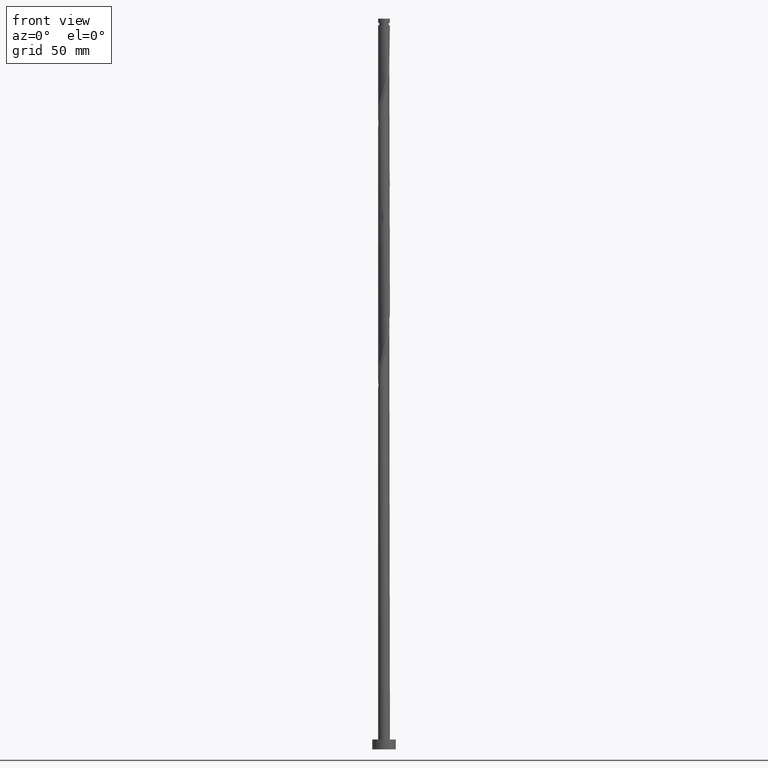
[diagram: clean part render]
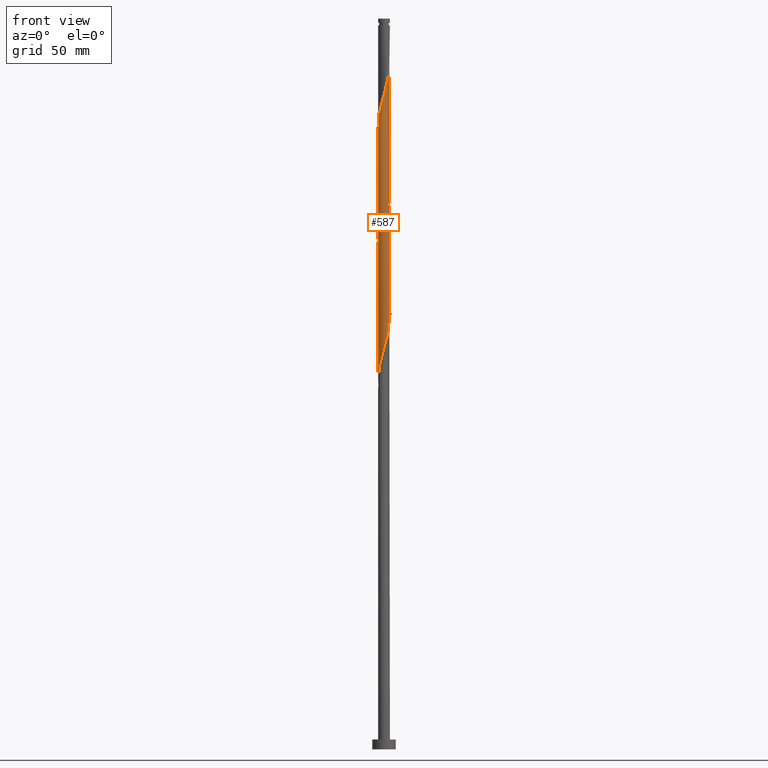
[diagram: same view with one face highlighted and labeled with its STEP entity id]
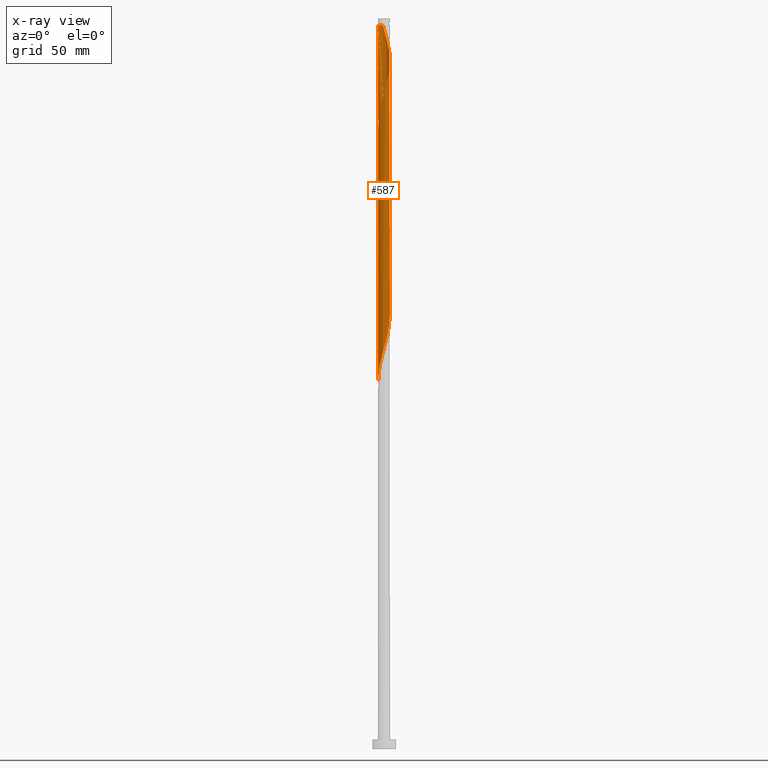
[diagram: x-ray of the same camera — body ghosted, the highlighted face saturated]
A machine part, front view. The second image highlights one B-rep face of the part: STEP entity #587.
The next image is the same camera in x-ray: the body ghosted, the highlighted face saturated — about 0% of this face is hidden behind the body in this view.
In plain terms, the highlighted cylindrical surface (bore or boss wall) has radius 3 mm, axis along (-0, -0, -1).
Its self-contained STEP definition (entity closure, byte-faithful):
#4 = CARTESIAN_POINT ( 'NONE',  ( -1.484415317302708592, -2.626010904050885220, 199.4691783691147862 ) ) ;
#9 = CARTESIAN_POINT ( 'NONE',  ( 3.000000000000000444, 3.673940397442060361E-16, 369.4691783691148430 ) ) ;
#14 = CARTESIAN_POINT ( 'NONE',  ( 1.245111594254571408, -2.729413328510879921, 276.1358450357814718 ) ) ;
#22 = CARTESIAN_POINT ( 'NONE',  ( -1.484415317302708592, -2.626010904050885220, 266.1358450357814718 ) ) ;
#52 = CARTESIAN_POINT ( 'NONE',  ( 0.000000000000000000, 0.000000000000000000, 369.4691783691147293 ) ) ;
#59 = CARTESIAN_POINT ( 'NONE',  ( -2.584311715169900658, -1.523592123514561303, 193.9136228135592148 ) ) ;
#65 = EDGE_CURVE ( 'NONE', #106, #1760, #941, .T. ) ;
#96 = ORIENTED_EDGE ( 'NONE', *, *, #890, .F. ) ;
#97 = CARTESIAN_POINT ( 'NONE',  ( 2.766788993523057627, -1.201790650553047346, 217.2469561468925292 ) ) ;
#104 = DIRECTION ( 'NONE',  ( -0.000000000000000000, -0.000000000000000000, -1.000000000000000000 ) ) ;
#106 = VERTEX_POINT ( 'NONE', #1238 ) ;
#107 = CARTESIAN_POINT ( 'NONE',  ( -2.456461689585820451, 1.750776419202127565, 248.3580672580037003 ) ) ;
#115 = CARTESIAN_POINT ( 'NONE',  ( -2.038775222402705367, 2.223244857174722089, 246.1358450357814149 ) ) ;
#123 = CARTESIAN_POINT ( 'NONE',  ( -0.02731362638454121541, -2.999875658392153532, 333.9136228135591864 ) ) ;
#125 = CARTESIAN_POINT ( 'NONE',  ( -0.9582386936374909236, 2.860279830445433547, 241.6914005913369863 ) ) ;
#130 = CARTESIAN_POINT ( 'NONE',  ( 2.980586974261063560, 0.3407363920471039309, 289.4691783691147862 ) ) ;
#132 = CARTESIAN_POINT ( 'NONE',  ( 1.195207115623885930, -2.751632233922633120, 338.3580672580037003 ) ) ;
#135 = CARTESIAN_POINT ( 'NONE',  ( -2.584311715169900658, -1.523592123514561303, 260.5802894802258720 ) ) ;
#145 = CARTESIAN_POINT ( 'NONE',  ( 1.785379858637178296, -2.410895841875524415, 278.3580672580036435 ) ) ;
#146 = CARTESIAN_POINT ( 'NONE',  ( -0.9059989139450637108, -2.877253563794371249, 201.6914005913369579 ) ) ;
#159 = CARTESIAN_POINT ( 'NONE',  ( 2.456461689585819563, -1.750776419202128675, 281.6914005913370147 ) ) ;
#177 = CARTESIAN_POINT ( 'NONE',  ( -0.9059989139450637108, -2.877253563794371249, 268.3580672580036435 ) ) ;
#187 = CARTESIAN_POINT ( 'NONE',  ( -2.980586974261063560, -0.3407363920471042085, 189.4691783691147862 ) ) ;
#196 = CARTESIAN_POINT ( 'NONE',  ( -2.424175730171094223, -1.795214230025623303, 195.0247339246703291 ) ) ;
#204 = CARTESIAN_POINT ( 'NONE',  ( -2.861491667719897602, 0.9010357570982414632, 251.6914005913369863 ) ) ;
#223 = CARTESIAN_POINT ( 'NONE',  ( -2.611625341554443924, -1.476283534877588011, 322.8025117024481006 ) ) ;
#232 = CARTESIAN_POINT ( 'NONE',  ( -3.000000000000000444, 1.644325696273145006E-15, 321.5946216126362174 ) ) ;
#236 = CARTESIAN_POINT ( 'NONE',  ( -0.6504259784947271639, 2.928642355512051765, 240.5802894802258436 ) ) ;
#241 = CARTESIAN_POINT ( 'NONE',  ( -2.861491667719897602, 0.9010357570982414632, 318.3580672580037003 ) ) ;
#248 = CARTESIAN_POINT ( 'NONE',  ( -0.02731362638453929334, 2.999875658392148647, 238.3580672580036435 ) ) ;
#252 = CARTESIAN_POINT ( 'NONE',  ( -2.456461689585820451, 1.750776419202127565, 315.0247339246703859 ) ) ;
#261 = CARTESIAN_POINT ( 'NONE',  ( -0.02731362638453929334, 2.999875658392148647, 305.0247339246703291 ) ) ;
#263 = CARTESIAN_POINT ( 'NONE',  ( 2.944774136347771520, -0.6540087066196541565, 348.3580672580035298 ) ) ;
#271 = CARTESIAN_POINT ( 'NONE',  ( -0.5969924622640608858, 2.940000000000874802, 369.4691783691148430 ) ) ;
#273 = CARTESIAN_POINT ( 'NONE',  ( 2.944774136347768412, 0.6540087066196489385, 223.9136228135592432 ) ) ;
#279 = CARTESIAN_POINT ( 'NONE',  ( -0.2879860105829035732, 3.002746436205633529, 368.3580672580036435 ) ) ;
#289 = CARTESIAN_POINT ( 'NONE',  ( 0.9582386936374943653, 2.860279830445438431, 363.9136228135592432 ) ) ;
#291 = CARTESIAN_POINT ( 'NONE',  ( 1.245111594254571408, -2.729413328510879921, 209.4691783691147862 ) ) ;
#296 = LINE ( 'NONE', #1194, #673 ) ;
#310 = CARTESIAN_POINT ( 'NONE',  ( 0.6504259784947263867, -2.928642355512053097, 273.9136228135592432 ) ) ;
#313 = DIRECTION ( 'NONE',  ( -1.000000000000000000, 0.000000000000000000, 0.000000000000000000 ) ) ;
#318 = CARTESIAN_POINT ( 'NONE',  ( 2.956194341916737578, -0.6002808636434362466, 286.1358450357813581 ) ) ;
#328 = CARTESIAN_POINT ( 'NONE',  ( -2.424175730171094223, -1.795214230025623303, 261.6914005913370147 ) ) ;
#345 = CARTESIAN_POINT ( 'NONE',  ( -2.986297077045549919, 0.2864083930844388282, 253.9136228135592148 ) ) ;
#380 = CARTESIAN_POINT ( 'NONE',  ( 0.9059989139450652651, 2.877253563794371249, 235.0247339246703291 ) ) ;
#385 = CARTESIAN_POINT ( 'NONE',  ( -3.000000000000000444, 3.916484840214219130E-15, 188.2612882793029314 ) ) ;
#388 = CARTESIAN_POINT ( 'NONE',  ( 2.844610918258236865, 0.9529893618115734544, 291.6914005913369010 ) ) ;
#392 = CARTESIAN_POINT ( 'NONE',  ( -2.611625341554439039, 1.476283534877586234, 249.4691783691147577 ) ) ;
#398 = CARTESIAN_POINT ( 'NONE',  ( 0.3426132633519657911, 2.997004880578674868, 366.1358450357813581 ) ) ;
#408 = CARTESIAN_POINT ( 'NONE',  ( 2.038775222402709364, 2.223244857174723865, 359.4691783691147293 ) ) ;
#413 = CARTESIAN_POINT ( 'NONE',  ( 2.611625341554439039, -1.476283534877586456, 216.1358450357813865 ) ) ;
#419 = CARTESIAN_POINT ( 'NONE',  ( 1.484415317302710147, -2.626010904050889216, 339.4691783691147862 ) ) ;
#428 = CARTESIAN_POINT ( 'NONE',  ( 2.956194341916742463, 0.6002808636434358025, 352.8025117024482142 ) ) ;
#437 = CARTESIAN_POINT ( 'NONE',  ( -1.785379858637182737, -2.410895841875527079, 327.2469561468926145 ) ) ;
#439 = CARTESIAN_POINT ( 'NONE',  ( -0.2879860105828862538, -3.002746436205629088, 203.9136228135592717 ) ) ;
#444 = CARTESIAN_POINT ( 'NONE',  ( 3.000000000000000444, 3.673940397442060361E-16, 372.8000000000000114 ) ) ;
#457 = CARTESIAN_POINT ( 'NONE',  ( 3.000000000000001776, -0.1435319978602356272, 287.7527397537389788 ) ) ;
#466 = CARTESIAN_POINT ( 'NONE',  ( 1.531984494871651670, -2.598546826576326296, 277.2469561468926713 ) ) ;
#474 = CARTESIAN_POINT ( 'NONE',  ( 3.000000000000000444, 3.273702977125625728E-15, 288.2612882793030167 ) ) ;
#488 = DIRECTION ( 'NONE',  ( -0.000000000000000000, -0.000000000000000000, -1.000000000000000000 ) ) ;
#503 = CARTESIAN_POINT ( 'NONE',  ( -2.861491667719902932, -0.9010357570982416853, 320.5802894802258720 ) ) ;
#504 = CARTESIAN_POINT ( 'NONE',  ( -2.766788993523057627, 1.201790650553046680, 250.5802894802259289 ) ) ;
#513 = CARTESIAN_POINT ( 'NONE',  ( -2.986297077045553916, -0.2864083930844377734, 318.3580672580035866 ) ) ;
#514 = CARTESIAN_POINT ( 'NONE',  ( -2.844610918258235976, -0.9529893618115752307, 191.6914005913369579 ) ) ;
#523 = CARTESIAN_POINT ( 'NONE',  ( 1.195207115623886818, 2.751632233922627790, 300.5802894802258720 ) ) ;
#527 = CARTESIAN_POINT ( 'NONE',  ( 2.861491667719896714, -0.9010357570982429065, 218.3580672580036435 ) ) ;
#535 = CARTESIAN_POINT ( 'NONE',  ( 2.424175730171094223, 1.795214230025621305, 295.0247339246702722 ) ) ;
#540 = CARTESIAN_POINT ( 'NONE',  ( 2.844610918258236865, 0.9529893618115734544, 225.0247339246703575 ) ) ;
#545 = CARTESIAN_POINT ( 'NONE',  ( -3.000000000000000888, 0.1435319978602457025, 321.0860730870722364 ) ) ;
#547 = CARTESIAN_POINT ( 'NONE',  ( -1.531984494871655444, -2.598546826576329405, 328.3580672580036435 ) ) ;
#558 = CARTESIAN_POINT ( 'NONE',  ( 0.5969924622639741774, -2.940000000000004388, 336.1358450357814718 ) ) ;
#567 = CARTESIAN_POINT ( 'NONE',  ( -2.456461689585825781, -1.750776419202128675, 323.9136228135591864 ) ) ;
#574 = CARTESIAN_POINT ( 'NONE',  ( 1.531984494871656777, 2.598546826576328517, 361.6914005913368442 ) ) ;
#585 = CARTESIAN_POINT ( 'NONE',  ( -2.844610918258235976, -0.9529893618115752307, 258.3580672580036435 ) ) ;
#587 = ADVANCED_FACE ( 'NONE', ( #1138 ), #1711, .T. ) ;
#622 = CARTESIAN_POINT ( 'NONE',  ( 2.611625341554439039, -1.476283534877586456, 282.8025117024480437 ) ) ;
#629 = VERTEX_POINT ( 'NONE', #1275 ) ;
#630 = CARTESIAN_POINT ( 'NONE',  ( -1.997955648279247542, -2.259998966801997966, 197.2469561468925860 ) ) ;
#640 = CARTESIAN_POINT ( 'NONE',  ( -3.000000000000000000, -0.1709212123392955807, 188.8668795886874534 ) ) ;
#644 = EDGE_CURVE ( 'NONE', #762, #106, #1779, .T. ) ;
#664 =( BOUNDED_CURVE ( )  B_SPLINE_CURVE ( 2, ( #836, #1246, #513, #797, #503, #1536, #223, #567, #1140, #1722, #437, #547, #1298, #1129, #1598, #1450, #123, #1149, #558, #1847, #132, #419, #720, #689, #728, #1590, #1306, #1877, #1740, #263, #859, #699, #852, #428, #1004, #1581, #1704, #1886, #1023, #408, #1729, #574, #1314, #289, #868, #398, #1442, #279, #271 ),
 .UNSPECIFIED., .F., .T. ) 
 B_SPLINE_CURVE_WITH_KNOTS ( ( 3, 2, 2, 2, 2, 2, 2, 2, 2, 2, 2, 2, 2, 2, 2, 2, 2, 2, 2, 2, 2, 2, 2, 2, 3 ),
 ( 0.5545286012773118500, 0.5583333333333333481, 0.5666666666666666519, 0.5750000000000000666, 0.5833333333333333703, 0.5916666666666667851, 0.6000000000000000888, 0.6083333333333335036, 0.6166666666666669183, 0.6250000000000002220, 0.6333333333333335258, 0.6416666666666668295, 0.6500000000000002442, 0.6583333333333336590, 0.6666666666666670737, 0.6750000000000003775, 0.6833333333333336812, 0.6916666666666670960, 0.7000000000000003997, 0.7083333333333337034, 0.7166666666666671182, 0.7250000000000004219, 0.7333333333333339477, 0.7416666666666672514, 0.7500000000000005551 ),
 .UNSPECIFIED. ) 
 CURVE ( )  GEOMETRIC_REPRESENTATION_ITEM ( )  RATIONAL_B_SPLINE_CURVE ( ( 0.9066196499552489074, 0.9068171577856618537, 0.9090909090909605750, 0.9041108139712088487, 0.9090909090909605750, 0.9041108139712088487, 0.9090909090909605750, 0.9041108139712088487, 0.9090909090909605750, 0.9041108139712088487, 0.9090909090909605750, 0.9041108139712088487, 0.9090909090909605750, 0.9041108139712088487, 0.9090909090909605750, 0.9041108139712088487, 0.9090909090909605750, 0.9041108139712088487, 0.9090909090909605750, 0.9041108139712088487, 0.9090909090909605750, 0.9041108139712088487, 0.9090909090909605750, 0.9041108139712088487, 0.9090909090909605750, 0.9041108139712088487, 0.9090909090909605750, 0.9041108139712088487, 0.9090909090909605750, 0.9041108139712088487, 0.9090909090909605750, 0.9041108139712088487, 0.9090909090909605750, 0.9041108139712088487, 0.9090909090909605750, 0.9041108139712088487, 0.9090909090909605750, 0.9041108139712088487, 0.9090909090909605750, 0.9041108139712088487, 0.9090909090909605750, 0.9041108139712088487, 0.9090909090909605750, 0.9041108139712088487, 0.9090909090909605750, 0.9041108139712088487, 0.9090909090909605750, 0.9041108139712085157, 0.9090909090909609080 ) ) 
 REPRESENTATION_ITEM ( '' )  );
#673 = VECTOR ( 'NONE', #1312, 1000.000000000000000 ) ;
#678 = CARTESIAN_POINT ( 'NONE',  ( -0.6504259784947271639, 2.928642355512051765, 307.2469561468925576 ) ) ;
#682 = CARTESIAN_POINT ( 'NONE',  ( 1.997955648279248209, 2.259998966801997522, 230.5802894802258720 ) ) ;
#687 = CARTESIAN_POINT ( 'NONE',  ( -2.611625341554439039, 1.476283534877586234, 316.1358450357814718 ) ) ;
#689 = CARTESIAN_POINT ( 'NONE',  ( 1.997955648279249319, -2.259998966802002851, 341.6914005913370147 ) ) ;
#692 = VERTEX_POINT ( 'NONE', #9 ) ;
#697 = CARTESIAN_POINT ( 'NONE',  ( -0.9582386936374909236, 2.860279830445433547, 308.3580672580036435 ) ) ;
#699 = CARTESIAN_POINT ( 'NONE',  ( 3.016399812174366257, -0.02746407747456081072, 350.5802894802258152 ) ) ;
#703 = CARTESIAN_POINT ( 'NONE',  ( -1.531984494871652336, 2.598546826576327184, 243.9136228135591580 ) ) ;
#708 = CARTESIAN_POINT ( 'NONE',  ( -2.956194341916737578, 0.6002808636434358025, 319.4691783691148430 ) ) ;
#714 = CARTESIAN_POINT ( 'NONE',  ( -1.245111594254571408, 2.729413328510879921, 242.8025117024481006 ) ) ;
#720 = CARTESIAN_POINT ( 'NONE',  ( 1.741185482790978956, -2.443004935426446700, 340.5802894802257583 ) ) ;
#726 = CARTESIAN_POINT ( 'NONE',  ( -0.5969924622640608858, 2.940000000000874802, 369.4691783691148430 ) ) ;
#728 = CARTESIAN_POINT ( 'NONE',  ( 2.211065689225172992, -2.027606598413814520, 342.8025117024481006 ) ) ;
#740 = CARTESIAN_POINT ( 'NONE',  ( -1.741185482790978289, -2.443004935426440483, 265.0247339246702722 ) ) ;
#752 = CARTESIAN_POINT ( 'NONE',  ( 2.247618455994261577, -1.987010638188425382, 213.9136228135591864 ) ) ;
#757 = EDGE_CURVE ( 'NONE', #788, #1760, #296, .T. ) ;
#762 = VERTEX_POINT ( 'NONE', #1462 ) ;
#770 = VERTEX_POINT ( 'NONE', #726 ) ;
#788 = VERTEX_POINT ( 'NONE', #1341 ) ;
#797 = CARTESIAN_POINT ( 'NONE',  ( -2.956194341916742463, -0.6002808636434362466, 319.4691783691147293 ) ) ;
#824 = CARTESIAN_POINT ( 'NONE',  ( 0.9059989139450652651, 2.877253563794371249, 301.6914005913370147 ) ) ;
#834 = DIRECTION ( 'NONE',  ( -1.000000000000000000, 0.000000000000000000, 0.000000000000000000 ) ) ;
#836 = CARTESIAN_POINT ( 'NONE',  ( -3.000000000000006217, -2.541230621513023448E-16, 317.3437351255933550 ) ) ;
#838 = CARTESIAN_POINT ( 'NONE',  ( 1.741185482790979622, 2.443004935426439594, 231.6914005913369579 ) ) ;
#842 = CARTESIAN_POINT ( 'NONE',  ( -1.785379858637178296, 2.410895841875523526, 311.6914005913370147 ) ) ;
#846 = ORIENTED_EDGE ( 'NONE', *, *, #1088, .T. ) ;
#850 = CARTESIAN_POINT ( 'NONE',  ( 0.2879860105828850325, 3.002746436205628644, 303.9136228135591864 ) ) ;
#852 = CARTESIAN_POINT ( 'NONE',  ( 2.986297077045553916, 0.2864083930844361081, 351.6914005913369579 ) ) ;
#857 = CARTESIAN_POINT ( 'NONE',  ( 2.999999999999997335, 0.1709212123393112348, 288.8668795886875387 ) ) ;
#859 = CARTESIAN_POINT ( 'NONE',  ( 2.980586974261068889, -0.3407363920471059848, 349.4691783691146725 ) ) ;
#868 = CARTESIAN_POINT ( 'NONE',  ( 0.6504259784947314937, 2.928642355512055762, 365.0247339246703291 ) ) ;
#879 = CARTESIAN_POINT ( 'NONE',  ( -0.5969924622639740663, -2.939999999999999503, 202.8025117024480721 ) ) ;
#889 = CARTESIAN_POINT ( 'NONE',  ( -1.741185482790978289, -2.443004935426440483, 198.3580672580036435 ) ) ;
#890 = EDGE_CURVE ( 'NONE', #692, #106, #1040, .T. ) ;
#898 = ORIENTED_EDGE ( 'NONE', *, *, #757, .T. ) ;
#899 = CARTESIAN_POINT ( 'NONE',  ( -0.2879860105828862538, -3.002746436205629088, 270.5802894802258720 ) ) ;
#934 = CARTESIAN_POINT ( 'NONE',  ( -2.956194341916737578, 0.6002808636434358025, 252.8025117024480437 ) ) ;
#941 =( BOUNDED_CURVE ( )  B_SPLINE_CURVE ( 2, ( #474, #457, #1751, #318, #1600, #1617, #622, #159, #1337, #1468, #145, #466, #14, #1046, #310, #1780, #1493, #899, #1317, #177, #1345, #22, #740, #1356, #1633, #328, #135, #1889, #585, #1170, #1326, #1226, #345, #934, #204, #504, #392, #107, #1133, #115, #1143, #703, #714, #125, #236, #1152, #248, #1707, #1415, #380, #988, #1697, #838, #682, #1270, #1006, #1840, #1290, #540, #273, #1862, #1715, #1565, #1427, #527, #97, #413, #998, #752, #1731, #1016, #1459, #291, #1171, #1742, #1338, #1190, #439, #879, #146, #1327, #4, #889, #630, #1062, #196, #59, #1393, #514, #1247, #187, #640, #1789 ),
 .UNSPECIFIED., .F., .T. ) 
 B_SPLINE_CURVE_WITH_KNOTS ( ( 3, 2, 2, 2, 2, 2, 2, 2, 2, 2, 2, 2, 2, 2, 2, 2, 2, 2, 2, 2, 2, 2, 2, 2, 2, 2, 2, 2, 2, 2, 2, 2, 2, 2, 2, 2, 2, 2, 2, 2, 2, 2, 2, 2, 2, 2, 3 ),
 ( 0.5545286012773110729, 0.5583333333333333481, 0.5666666666666666519, 0.5749999999999999556, 0.5833333333333333703, 0.5916666666666666741, 0.5999999999999999778, 0.6083333333333332815, 0.6166666666666666963, 0.6250000000000000000, 0.6333333333333333037, 0.6416666666666667185, 0.6500000000000000222, 0.6583333333333333259, 0.6666666666666666297, 0.6750000000000000444, 0.6833333333333333481, 0.6916666666666666519, 0.6999999999999999556, 0.7083333333333333703, 0.7166666666666666741, 0.7249999999999999778, 0.7333333333333332815, 0.7416666666666666963, 0.7500000000000000000, 0.7583333333333333037, 0.7666666666666667185, 0.7750000000000000222, 0.7833333333333333259, 0.7916666666666666297, 0.8000000000000000444, 0.8083333333333333481, 0.8166666666666666519, 0.8249999999999999556, 0.8333333333333333703, 0.8416666666666666741, 0.8499999999999999778, 0.8583333333333332815, 0.8666666666666666963, 0.8750000000000000000, 0.8833333333333333037, 0.8916666666666666075, 0.9000000000000001332, 0.9083333333333333259, 0.9166666666666666297, 0.9250000000000000444, 0.9295286012773115170 ),
 .UNSPECIFIED. ) 
 CURVE ( )  GEOMETRIC_REPRESENTATION_ITEM ( )  RATIONAL_B_SPLINE_CURVE ( ( 0.9066196499552421351, 0.9068171577856545262, 0.9090909090909538026, 0.9041108139712019653, 0.9090909090909538026, 0.9041108139712019653, 0.9090909090909538026, 0.9041108139712019653, 0.9090909090909538026, 0.9041108139712019653, 0.9090909090909538026, 0.9041108139712019653, 0.9090909090909538026, 0.9041108139712019653, 0.9090909090909538026, 0.9041108139712019653, 0.9090909090909538026, 0.9041108139712019653, 0.9090909090909538026, 0.9041108139712019653, 0.9090909090909538026, 0.9041108139712019653, 0.9090909090909538026, 0.9041108139712019653, 0.9090909090909538026, 0.9041108139712019653, 0.9090909090909538026, 0.9041108139712019653, 0.9090909090909538026, 0.9041108139712019653, 0.9090909090909538026, 0.9041108139712019653, 0.9090909090909538026, 0.9041108139712019653, 0.9090909090909538026, 0.9041108139712019653, 0.9090909090909538026, 0.9041108139712019653, 0.9090909090909538026, 0.9041108139712019653, 0.9090909090909538026, 0.9041108139712019653, 0.9090909090909538026, 0.9041108139712019653, 0.9090909090909538026, 0.9041108139712019653, 0.9090909090909538026, 0.9041108139712019653, 0.9090909090909538026, 0.9041108139712019653, 0.9090909090909538026, 0.9041108139712019653, 0.9090909090909538026, 0.9041108139712019653, 0.9090909090909538026, 0.9041108139712019653, 0.9090909090909538026, 0.9041108139712019653, 0.9090909090909538026, 0.9041108139712019653, 0.9090909090909538026, 0.9041108139712019653, 0.9090909090909538026, 0.9041108139712019653, 0.9090909090909538026, 0.9041108139712019653, 0.9090909090909538026, 0.9041108139712019653, 0.9090909090909538026, 0.9041108139712019653, 0.9090909090909538026, 0.9041108139712019653, 0.9090909090909538026, 0.9041108139712019653, 0.9090909090909538026, 0.9041108139712019653, 0.9090909090909538026, 0.9041108139712019653, 0.9090909090909538026, 0.9041108139712019653, 0.9090909090909538026, 0.9041108139712019653, 0.9090909090909538026, 0.9041108139712019653, 0.9090909090909538026, 0.9041108139712019653, 0.9090909090909538026, 0.9041108139712019653, 0.9090909090909538026, 0.9041108139712019653, 0.9090909090909538026, 0.9063845652765009087, 0.9066196499552421351 ) ) 
 REPRESENTATION_ITEM ( '' )  );
#945 = AXIS2_PLACEMENT_3D ( 'NONE', #1544, #1824, #834 ) ;
#976 = ORIENTED_EDGE ( 'NONE', *, *, #1233, .F. ) ;
#988 = CARTESIAN_POINT ( 'NONE',  ( 1.195207115623886818, 2.751632233922627790, 233.9136228135592148 ) ) ;
#994 = LINE ( 'NONE', #1433, #1382 ) ;
#998 = CARTESIAN_POINT ( 'NONE',  ( 2.456461689585819563, -1.750776419202128675, 215.0247339246703007 ) ) ;
#1002 = CARTESIAN_POINT ( 'NONE',  ( -2.986297077045549919, 0.2864083930844388282, 320.5802894802259289 ) ) ;
#1004 = CARTESIAN_POINT ( 'NONE',  ( 2.861491667719903376, 0.9010357570982405750, 353.9136228135593001 ) ) ;
#1006 = CARTESIAN_POINT ( 'NONE',  ( 2.424175730171094223, 1.795214230025621305, 228.3580672580036719 ) ) ;
#1016 = CARTESIAN_POINT ( 'NONE',  ( 1.785379858637178296, -2.410895841875524415, 211.6914005913369579 ) ) ;
#1023 = CARTESIAN_POINT ( 'NONE',  ( 2.247618455994268238, 1.987010638188425604, 358.3580672580036435 ) ) ;
#1040 = LINE ( 'NONE', #444, #1164 ) ;
#1046 = CARTESIAN_POINT ( 'NONE',  ( 0.9582386936374903685, -2.860279830445433991, 275.0247339246703291 ) ) ;
#1062 = CARTESIAN_POINT ( 'NONE',  ( -2.211065689225170328, -2.027606598413810524, 196.1358450357814434 ) ) ;
#1088 = EDGE_CURVE ( 'NONE', #629, #770, #1292, .T. ) ;
#1109 = CARTESIAN_POINT ( 'NONE',  ( 1.741185482790979622, 2.443004935426439594, 298.3580672580037572 ) ) ;
#1119 = CARTESIAN_POINT ( 'NONE',  ( 2.584311715169900658, 1.523592123514560859, 293.9136228135591864 ) ) ;
#1127 = CARTESIAN_POINT ( 'NONE',  ( -2.038775222402705367, 2.223244857174722089, 312.8025117024481574 ) ) ;
#1129 = CARTESIAN_POINT ( 'NONE',  ( -0.9582386936374938102, -2.860279830445438431, 330.5802894802258152 ) ) ;
#1131 = EDGE_LOOP ( 'NONE', ( #1871, #846, #976, #898, #1706, #96, #1355, #1288 ) ) ;
#1133 = CARTESIAN_POINT ( 'NONE',  ( -2.247618455994262465, 1.987010638188424494, 247.2469561468925008 ) ) ;
#1138 = FACE_OUTER_BOUND ( 'NONE', #1131, .T. ) ;
#1140 = CARTESIAN_POINT ( 'NONE',  ( -2.247618455994266906, -1.987010638188426492, 325.0247339246702154 ) ) ;
#1143 = CARTESIAN_POINT ( 'NONE',  ( -1.785379858637178296, 2.410895841875523526, 245.0247339246703007 ) ) ;
#1149 = CARTESIAN_POINT ( 'NONE',  ( 0.2879860105828841443, -3.002746436205632641, 335.0247339246703291 ) ) ;
#1152 = CARTESIAN_POINT ( 'NONE',  ( -0.3426132633519639037, 2.997004880578669095, 239.4691783691147293 ) ) ;
#1164 = VECTOR ( 'NONE', #1727, 1000.000000000000000 ) ;
#1170 = CARTESIAN_POINT ( 'NONE',  ( -2.944774136347768412, -0.6540087066196496046, 257.2469561468925008 ) ) ;
#1171 = CARTESIAN_POINT ( 'NONE',  ( 0.9582386936374903685, -2.860279830445433991, 208.3580672580035866 ) ) ;
#1190 = CARTESIAN_POINT ( 'NONE',  ( 0.02731362638453854741, -2.999875658392148203, 205.0247339246703291 ) ) ;
#1194 = CARTESIAN_POINT ( 'NONE',  ( -3.000000000000000444, 0.000000000000000000, 372.8000000000000114 ) ) ;
#1226 = CARTESIAN_POINT ( 'NONE',  ( -3.016399812174360484, -0.02746407747455825027, 255.0247339246703575 ) ) ;
#1233 = EDGE_CURVE ( 'NONE', #788, #770, #664, .T. ) ;
#1238 = CARTESIAN_POINT ( 'NONE',  ( 3.000000000000000444, 3.273702977125625728E-15, 288.2612882793030167 ) ) ;
#1246 = CARTESIAN_POINT ( 'NONE',  ( -3.000000000000003997, -0.1435319978602622171, 317.8522836511573928 ) ) ;
#1247 = CARTESIAN_POINT ( 'NONE',  ( -2.944774136347768412, -0.6540087066196496046, 190.5802894802259004 ) ) ;
#1266 = CARTESIAN_POINT ( 'NONE',  ( 2.211065689225170772, 2.027606598413810524, 296.1358450357814149 ) ) ;
#1270 = CARTESIAN_POINT ( 'NONE',  ( 2.211065689225170772, 2.027606598413810524, 229.4691783691147862 ) ) ;
#1275 = CARTESIAN_POINT ( 'NONE',  ( -2.999999999999967581, 0.000000000000000000, 369.4691783691147293 ) ) ;
#1288 = ORIENTED_EDGE ( 'NONE', *, *, #644, .F. ) ;
#1290 = CARTESIAN_POINT ( 'NONE',  ( 2.744447700168706650, 1.251970017003501301, 226.1358450357814434 ) ) ;
#1292 = CIRCLE ( 'NONE', #1797, 2.999999999999967581 ) ;
#1295 = CARTESIAN_POINT ( 'NONE',  ( 0.5969924622639745104, 2.939999999999999503, 302.8025117024481006 ) ) ;
#1298 = CARTESIAN_POINT ( 'NONE',  ( -1.245111594254574738, -2.729413328510884362, 329.4691783691147862 ) ) ;
#1304 = CARTESIAN_POINT ( 'NONE',  ( 3.000000000000000444, 3.273702977125625728E-15, 288.2612882793030167 ) ) ;
#1306 = CARTESIAN_POINT ( 'NONE',  ( 2.584311715169902879, -1.523592123514565966, 345.0247339246703291 ) ) ;
#1312 = DIRECTION ( 'NONE',  ( -0.000000000000000000, -0.000000000000000000, -1.000000000000000000 ) ) ;
#1314 = CARTESIAN_POINT ( 'NONE',  ( 1.245111594254574738, 2.729413328510884362, 362.8025117024481574 ) ) ;
#1317 = CARTESIAN_POINT ( 'NONE',  ( -0.5969924622639740663, -2.939999999999999503, 269.4691783691147862 ) ) ;
#1326 = CARTESIAN_POINT ( 'NONE',  ( -2.980586974261063560, -0.3407363920471042085, 256.1358450357814149 ) ) ;
#1327 = CARTESIAN_POINT ( 'NONE',  ( -1.195207115623886596, -2.751632233922628235, 200.5802894802259004 ) ) ;
#1337 = CARTESIAN_POINT ( 'NONE',  ( 2.247618455994261577, -1.987010638188425382, 280.5802894802258152 ) ) ;
#1338 = CARTESIAN_POINT ( 'NONE',  ( 0.3426132633519635151, -2.997004880578669983, 206.1358450357814718 ) ) ;
#1341 = CARTESIAN_POINT ( 'NONE',  ( -3.000000000000005773, -2.541230621513023448E-16, 317.3437351255933550 ) ) ;
#1345 = CARTESIAN_POINT ( 'NONE',  ( -1.195207115623886596, -2.751632233922628235, 267.2469561468925008 ) ) ;
#1353 = EDGE_CURVE ( 'NONE', #629, #762, #994, .T. ) ;
#1355 = ORIENTED_EDGE ( 'NONE', *, *, #890, .T. ) ;
#1356 = CARTESIAN_POINT ( 'NONE',  ( -1.997955648279247542, -2.259998966801997966, 263.9136228135592432 ) ) ;
#1382 = VECTOR ( 'NONE', #104, 1000.000000000000000 ) ;
#1393 = CARTESIAN_POINT ( 'NONE',  ( -2.744447700168706206, -1.251970017003501301, 192.8025117024481290 ) ) ;
#1400 = CARTESIAN_POINT ( 'NONE',  ( 1.484415317302709036, 2.626010904050884331, 299.4691783691146725 ) ) ;
#1415 = CARTESIAN_POINT ( 'NONE',  ( 0.5969924622639745104, 2.939999999999999503, 236.1358450357813581 ) ) ;
#1427 = CARTESIAN_POINT ( 'NONE',  ( 2.956194341916737578, -0.6002808636434362466, 219.4691783691147862 ) ) ;
#1431 = CARTESIAN_POINT ( 'NONE',  ( -1.531984494871652336, 2.598546826576327184, 310.5802894802259289 ) ) ;
#1433 = CARTESIAN_POINT ( 'NONE',  ( -3.000000000000000444, 0.000000000000000000, 372.8000000000000114 ) ) ;
#1442 = CARTESIAN_POINT ( 'NONE',  ( 0.02731362638454164216, 2.999875658392154421, 367.2469561468925576 ) ) ;
#1450 = CARTESIAN_POINT ( 'NONE',  ( -0.3426132633519652360, -2.997004880578674424, 332.8025117024480437 ) ) ;
#1454 = CARTESIAN_POINT ( 'NONE',  ( 2.944774136347768412, 0.6540087066196489385, 290.5802894802259857 ) ) ;
#1459 = CARTESIAN_POINT ( 'NONE',  ( 1.531984494871651670, -2.598546826576326296, 210.5802894802258720 ) ) ;
#1462 = CARTESIAN_POINT ( 'NONE',  ( -3.000000000000000444, 1.644325696273145006E-15, 321.5946216126362174 ) ) ;
#1468 = CARTESIAN_POINT ( 'NONE',  ( 2.038775222402704479, -2.223244857174722089, 279.4691783691147293 ) ) ;
#1493 = CARTESIAN_POINT ( 'NONE',  ( 0.02731362638453854741, -2.999875658392148203, 271.6914005913369579 ) ) ;
#1536 = CARTESIAN_POINT ( 'NONE',  ( -2.766788993523062512, -1.201790650553046236, 321.6914005913369579 ) ) ;
#1544 = CARTESIAN_POINT ( 'NONE',  ( 0.000000000000000000, 0.000000000000000000, 372.8000000000000114 ) ) ;
#1553 = CARTESIAN_POINT ( 'NONE',  ( -2.766788993523057627, 1.201790650553046680, 317.2469561468925576 ) ) ;
#1565 = CARTESIAN_POINT ( 'NONE',  ( 2.986297077045549475, -0.2864083930844398274, 220.5802894802258720 ) ) ;
#1569 = CARTESIAN_POINT ( 'NONE',  ( -0.3426132633519639037, 2.997004880578669095, 306.1358450357815286 ) ) ;
#1579 = CARTESIAN_POINT ( 'NONE',  ( -1.245111594254571408, 2.729413328510879921, 309.4691783691146725 ) ) ;
#1581 = CARTESIAN_POINT ( 'NONE',  ( 2.766788993523062956, 1.201790650553045126, 355.0247339246702722 ) ) ;
#1590 = CARTESIAN_POINT ( 'NONE',  ( 2.424175730171096443, -1.795214230025627300, 343.9136228135591864 ) ) ;
#1598 = CARTESIAN_POINT ( 'NONE',  ( -0.6504259784947296064, -2.928642355512056650, 331.6914005913370147 ) ) ;
#1600 = CARTESIAN_POINT ( 'NONE',  ( 2.861491667719896714, -0.9010357570982429065, 285.0247339246703291 ) ) ;
#1617 = CARTESIAN_POINT ( 'NONE',  ( 2.766788993523057627, -1.201790650553047346, 283.9136228135593001 ) ) ;
#1633 = CARTESIAN_POINT ( 'NONE',  ( -2.211065689225170328, -2.027606598413810524, 262.8025117024480437 ) ) ;
#1693 = CARTESIAN_POINT ( 'NONE',  ( 2.744447700168706650, 1.251970017003501301, 292.8025117024481006 ) ) ;
#1697 = CARTESIAN_POINT ( 'NONE',  ( 1.484415317302709036, 2.626010904050884331, 232.8025117024481290 ) ) ;
#1704 = CARTESIAN_POINT ( 'NONE',  ( 2.611625341554443924, 1.476283534877587567, 356.1358450357813581 ) ) ;
#1706 = ORIENTED_EDGE ( 'NONE', *, *, #65, .F. ) ;
#1707 = CARTESIAN_POINT ( 'NONE',  ( 0.2879860105828850325, 3.002746436205628644, 237.2469561468925576 ) ) ;
#1711 = CYLINDRICAL_SURFACE ( 'NONE', #945, 3.000000000000000444 ) ;
#1715 = CARTESIAN_POINT ( 'NONE',  ( 3.016399812174360484, 0.02746407747455655718, 221.6914005913369863 ) ) ;
#1720 = CARTESIAN_POINT ( 'NONE',  ( -2.247618455994262465, 1.987010638188424494, 313.9136228135591864 ) ) ;
#1722 = CARTESIAN_POINT ( 'NONE',  ( -2.038775222402708920, -2.223244857174723865, 326.1358450357814718 ) ) ;
#1727 = DIRECTION ( 'NONE',  ( -0.000000000000000000, -0.000000000000000000, -1.000000000000000000 ) ) ;
#1729 = CARTESIAN_POINT ( 'NONE',  ( 1.785379858637182737, 2.410895841875526635, 360.5802894802259289 ) ) ;
#1731 = CARTESIAN_POINT ( 'NONE',  ( 2.038775222402704479, -2.223244857174722089, 212.8025117024480721 ) ) ;
#1740 = CARTESIAN_POINT ( 'NONE',  ( 2.844610918258240861, -0.9529893618115791165, 347.2469561468925576 ) ) ;
#1742 = CARTESIAN_POINT ( 'NONE',  ( 0.6504259784947263867, -2.928642355512053097, 207.2469561468925008 ) ) ;
#1751 = CARTESIAN_POINT ( 'NONE',  ( 2.986297077045549475, -0.2864083930844398274, 287.2469561468926145 ) ) ;
#1760 = VERTEX_POINT ( 'NONE', #385 ) ;
#1779 =( BOUNDED_CURVE ( )  B_SPLINE_CURVE ( 2, ( #232, #545, #1002, #708, #241, #1553, #687, #252, #1720, #1127, #842, #1431, #1579, #697, #678, #1569, #261, #850, #1295, #824, #523, #1400, #1109, #1867, #1266, #535, #1119, #1693, #388, #1454, #130, #857, #1304 ),
 .UNSPECIFIED., .F., .T. ) 
 B_SPLINE_CURVE_WITH_KNOTS ( ( 3, 2, 2, 2, 2, 2, 2, 2, 2, 2, 2, 2, 2, 2, 2, 2, 3 ),
 ( 0.4295286012773113504, 0.4333333333333333481, 0.4416666666666666519, 0.4500000000000000111, 0.4583333333333333148, 0.4666666666666666741, 0.4749999999999999778, 0.4833333333333333370, 0.4916666666666666408, 0.5000000000000000000, 0.5083333333333333037, 0.5166666666666667185, 0.5250000000000000222, 0.5333333333333333259, 0.5416666666666666297, 0.5500000000000000444, 0.5545286012773110729 ),
 .UNSPECIFIED. ) 
 CURVE ( )  GEOMETRIC_REPRESENTATION_ITEM ( )  RATIONAL_B_SPLINE_CURVE ( ( 0.9066196499552421351, 0.9068171577856547483, 0.9090909090909538026, 0.9041108139712019653, 0.9090909090909538026, 0.9041108139712019653, 0.9090909090909538026, 0.9041108139712019653, 0.9090909090909538026, 0.9041108139712019653, 0.9090909090909538026, 0.9041108139712019653, 0.9090909090909538026, 0.9041108139712019653, 0.9090909090909538026, 0.9041108139712019653, 0.9090909090909538026, 0.9041108139712019653, 0.9090909090909538026, 0.9041108139712019653, 0.9090909090909538026, 0.9041108139712019653, 0.9090909090909538026, 0.9041108139712019653, 0.9090909090909538026, 0.9041108139712019653, 0.9090909090909538026, 0.9041108139712019653, 0.9090909090909538026, 0.9041108139712019653, 0.9090909090909538026, 0.9063845652765012417, 0.9066196499552421351 ) ) 
 REPRESENTATION_ITEM ( '' )  );
#1780 = CARTESIAN_POINT ( 'NONE',  ( 0.3426132633519635151, -2.997004880578669983, 272.8025117024480437 ) ) ;
#1789 = CARTESIAN_POINT ( 'NONE',  ( -3.000000000000000444, 3.916484840214219130E-15, 188.2612882793029598 ) ) ;
#1797 = AXIS2_PLACEMENT_3D ( 'NONE', #52, #488, #313 ) ;
#1824 = DIRECTION ( 'NONE',  ( -0.000000000000000000, -0.000000000000000000, -1.000000000000000000 ) ) ;
#1840 = CARTESIAN_POINT ( 'NONE',  ( 2.584311715169900658, 1.523592123514560859, 227.2469561468925292 ) ) ;
#1847 = CARTESIAN_POINT ( 'NONE',  ( 0.9059989139450624895, -2.877253563794377911, 337.2469561468925576 ) ) ;
#1862 = CARTESIAN_POINT ( 'NONE',  ( 2.980586974261063560, 0.3407363920471039309, 222.8025117024480721 ) ) ;
#1867 = CARTESIAN_POINT ( 'NONE',  ( 1.997955648279248209, 2.259998966801997522, 297.2469561468926713 ) ) ;
#1871 = ORIENTED_EDGE ( 'NONE', *, *, #1353, .F. ) ;
#1877 = CARTESIAN_POINT ( 'NONE',  ( 2.744447700168710202, -1.251970017003504410, 346.1358450357814718 ) ) ;
#1886 = CARTESIAN_POINT ( 'NONE',  ( 2.456461689585825781, 1.750776419202128009, 357.2469561468925576 ) ) ;
#1889 = CARTESIAN_POINT ( 'NONE',  ( -2.744447700168706206, -1.251970017003501301, 259.4691783691148430 ) ) ;